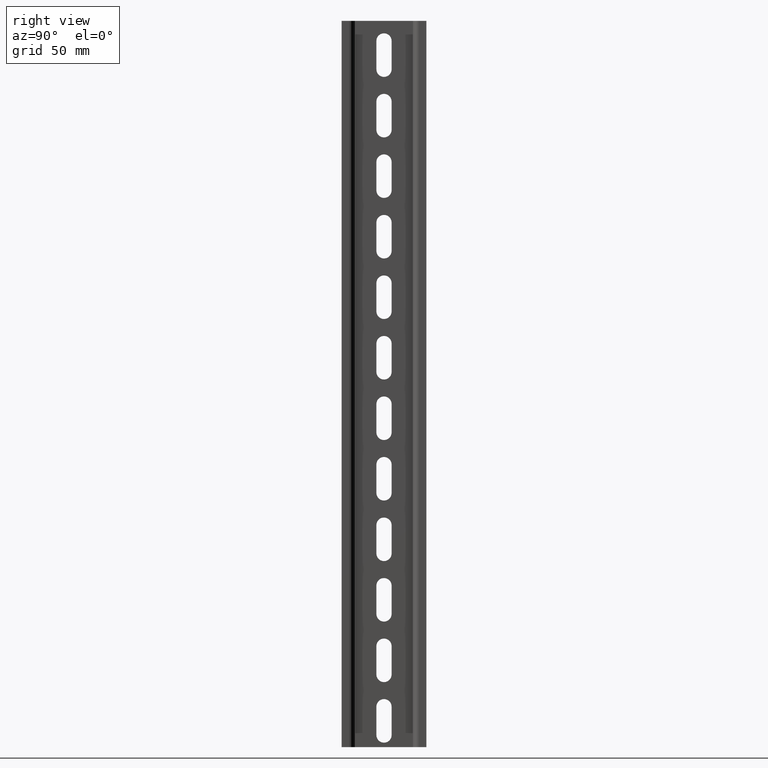
[diagram: clean part render]
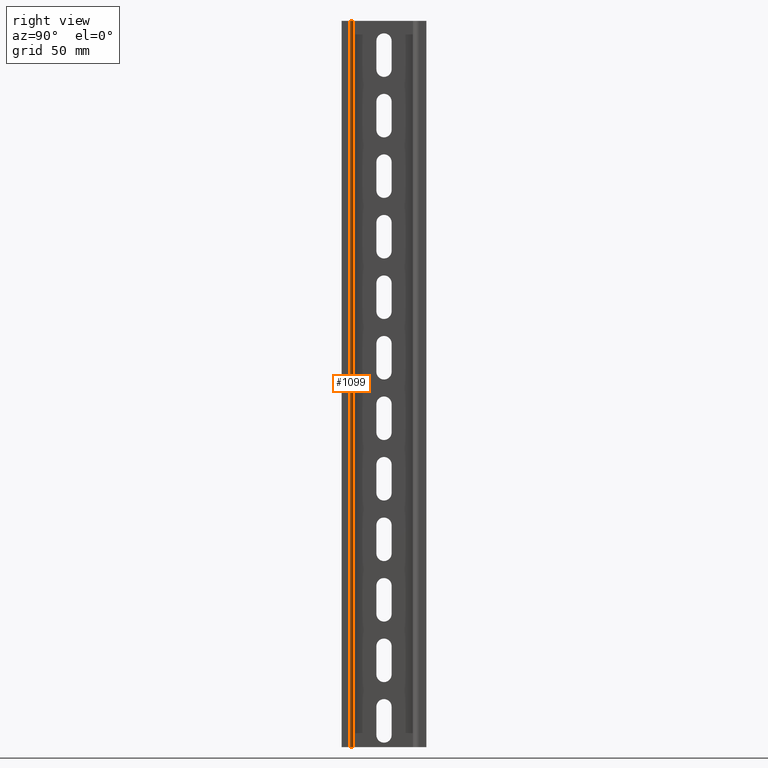
[diagram: same view with one face highlighted and labeled with its STEP entity id]
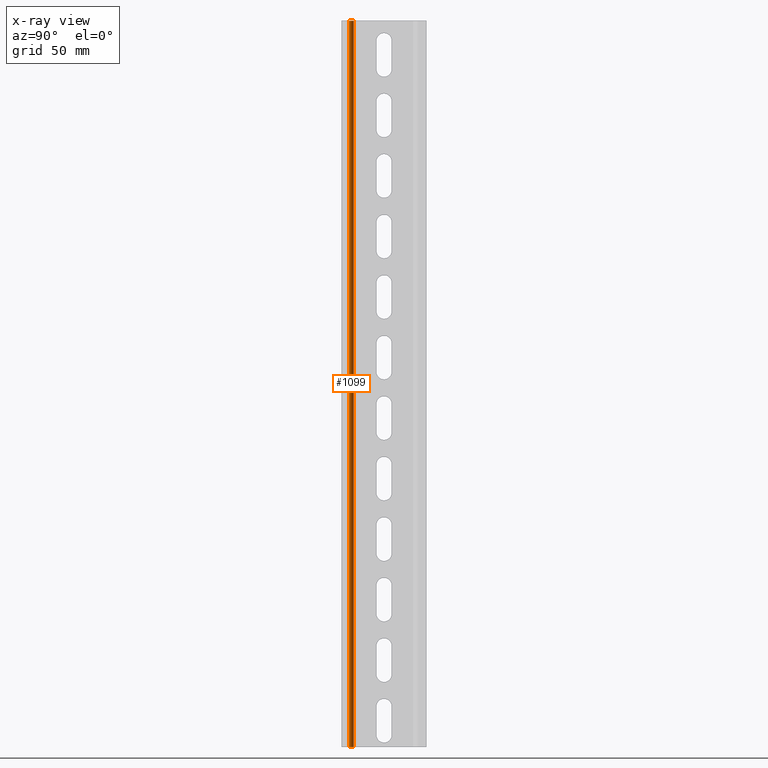
[diagram: x-ray of the same camera — body ghosted, the highlighted face saturated]
A machine part, right view. The second image highlights one B-rep face of the part: STEP entity #1099.
The next image is the same camera in x-ray: the body ghosted, the highlighted face saturated — about 0% of this face is hidden behind the body in this view.
In plain terms, the highlighted cylindrical surface (edge-blend (fillet) strip) has radius 1.8 mm, axis along (0, 0, 1).
Its self-contained STEP definition (entity closure, byte-faithful):
#70 = VERTEX_POINT ( 'NONE', #209 ) ;
#81 = VERTEX_POINT ( 'NONE', #228 ) ;
#109 = VERTEX_POINT ( 'NONE', #290 ) ;
#111 = VERTEX_POINT ( 'NONE', #259 ) ;
#209 = CARTESIAN_POINT ( 'NONE',  ( 1390.525919215657700, 456.5188036583253400, 0.0000000000000000000 ) ) ;
#228 = CARTESIAN_POINT ( 'NONE',  ( 1390.525919215657700, 456.5188036583253400, 300.0000000000000000 ) ) ;
#259 = CARTESIAN_POINT ( 'NONE',  ( 1392.325919215657900, 454.7188036583252700, 300.0000000000000000 ) ) ;
#290 = CARTESIAN_POINT ( 'NONE',  ( 1392.325919215657900, 454.7188036583252700, 0.0000000000000000000 ) ) ;
#369 = DIRECTION ( 'NONE',  ( 0.0000000000000000000, 0.0000000000000000000, 1.000000000000000000 ) ) ;
#395 = CARTESIAN_POINT ( 'NONE',  ( 1390.525919215657700, 454.7188036583252700, 0.0000000000000000000 ) ) ;
#396 = DIRECTION ( 'NONE',  ( 1.000000000000000000, 0.0000000000000000000, 0.0000000000000000000 ) ) ;
#441 = EDGE_LOOP ( 'NONE', ( #819, #765, #780, #808 ) ) ;
#765 = ORIENTED_EDGE ( 'NONE', *, *, #999, .T. ) ;
#780 = ORIENTED_EDGE ( 'NONE', *, *, #1399, .F. ) ;
#808 = ORIENTED_EDGE ( 'NONE', *, *, #1403, .T. ) ;
#819 = ORIENTED_EDGE ( 'NONE', *, *, #970, .T. ) ;
#970 = EDGE_CURVE ( 'NONE', #109, #70, #2741, .T. ) ;
#999 = EDGE_CURVE ( 'NONE', #70, #81, #2241, .T. ) ;
#1099 = ADVANCED_FACE ( 'NONE', ( #1560 ), #1513, .T. ) ;
#1172 = CARTESIAN_POINT ( 'NONE',  ( 1390.525919215657700, 454.7188036583252700, 300.0000000000000000 ) ) ;
#1175 = CARTESIAN_POINT ( 'NONE',  ( 1392.325919215657900, 454.7188036583252700, 300.0000000000000000 ) ) ;
#1179 = DIRECTION ( 'NONE',  ( 0.0000000000000000000, 0.0000000000000000000, 1.000000000000000000 ) ) ;
#1187 = DIRECTION ( 'NONE',  ( 1.000000000000000000, 0.0000000000000000000, 0.0000000000000000000 ) ) ;
#1188 = LINE ( 'NONE', #1175, #2710 ) ;
#1200 = DIRECTION ( 'NONE',  ( -0.0000000000000000000, -0.0000000000000000000, -1.000000000000000000 ) ) ;
#1399 = EDGE_CURVE ( 'NONE', #111, #81, #2652, .T. ) ;
#1403 = EDGE_CURVE ( 'NONE', #111, #109, #1188, .T. ) ;
#1513 = CYLINDRICAL_SURFACE ( 'NONE', #2504, 1.800000000000023800 ) ;
#1528 = DIRECTION ( 'NONE',  ( 1.000000000000000000, 0.0000000000000000000, 0.0000000000000000000 ) ) ;
#1556 = CARTESIAN_POINT ( 'NONE',  ( 1390.525919215657700, 454.7188036583252700, 300.0000000000000000 ) ) ;
#1560 = FACE_OUTER_BOUND ( 'NONE', #441, .T. ) ;
#1561 = DIRECTION ( 'NONE',  ( 0.0000000000000000000, 0.0000000000000000000, 1.000000000000000000 ) ) ;
#2241 = LINE ( 'NONE', #2250, #2787 ) ;
#2250 = CARTESIAN_POINT ( 'NONE',  ( 1390.525919215657700, 456.5188036583253400, 300.0000000000000000 ) ) ;
#2259 = DIRECTION ( 'NONE',  ( -0.0000000000000000000, 0.0000000000000000000, 1.000000000000000000 ) ) ;
#2504 = AXIS2_PLACEMENT_3D ( 'NONE', #1556, #1561, #1528 ) ;
#2652 = CIRCLE ( 'NONE', #2665, 1.800000000000023800 ) ;
#2665 = AXIS2_PLACEMENT_3D ( 'NONE', #1172, #1179, #1187 ) ;
#2710 = VECTOR ( 'NONE', #1200, 1000.000000000000000 ) ;
#2732 = AXIS2_PLACEMENT_3D ( 'NONE', #395, #369, #396 ) ;
#2741 = CIRCLE ( 'NONE', #2732, 1.800000000000023800 ) ;
#2787 = VECTOR ( 'NONE', #2259, 1000.000000000000000 ) ;